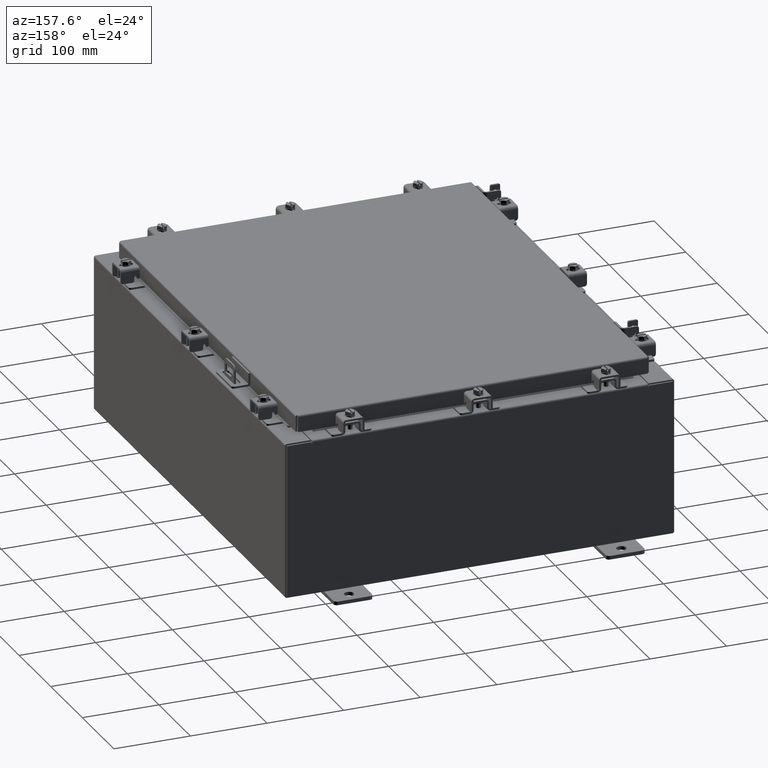
[diagram: clean part render]
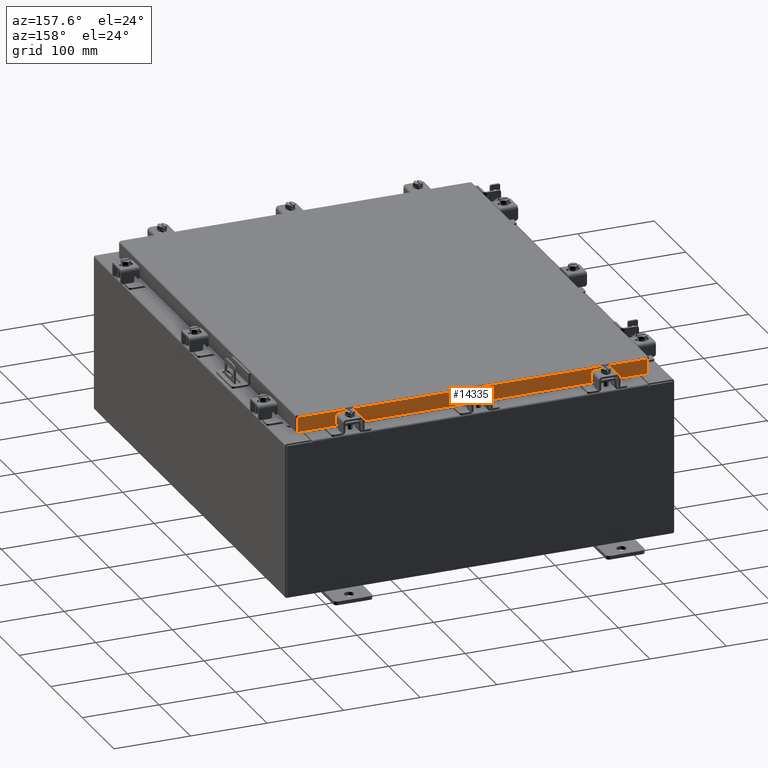
[diagram: same view with one face highlighted and labeled with its STEP entity id]
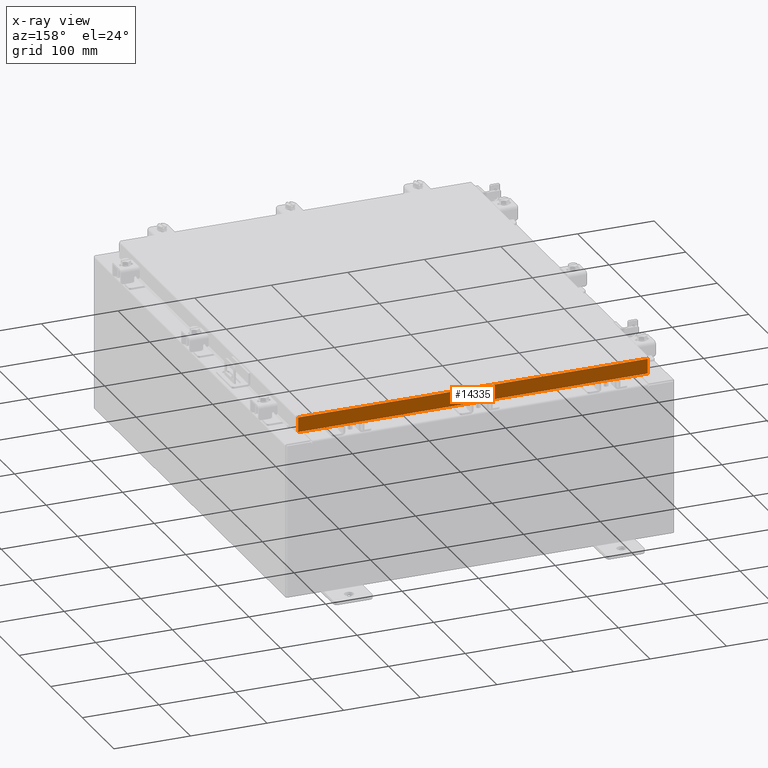
[diagram: x-ray of the same camera — body ghosted, the highlighted face saturated]
A machine part, auxiliary view. The second image highlights one B-rep face of the part: STEP entity #14335.
The next image is the same camera in x-ray: the body ghosted, the highlighted face saturated — about 0% of this face is hidden behind the body in this view.
In plain terms, the highlighted planar face has unit normal (0, -1, -0).
Its self-contained STEP definition (entity closure, byte-faithful):
#445 = VERTEX_POINT ( 'NONE', #1860 ) ;
#1279 = VERTEX_POINT ( 'NONE', #8157 ) ;
#1297 = CARTESIAN_POINT ( 'NONE',  ( -8.989157864376267100, 11.09399999999999900, -0.08770000000000007000 ) ) ;
#1490 = VERTEX_POINT ( 'NONE', #1807 ) ;
#1600 = CARTESIAN_POINT ( 'NONE',  ( -9.077999999999999400, 11.09400000000000100, -0.8500000000000019800 ) ) ;
#1807 = CARTESIAN_POINT ( 'NONE',  ( 8.239157864376267100, 11.09399999999999900, -0.8500000000000046400 ) ) ;
#1860 = CARTESIAN_POINT ( 'NONE',  ( 8.989157864376267100, 11.09399999999999900, -0.08770000000000007000 ) ) ;
#3460 = VECTOR ( 'NONE', #16653, 39.37007874015748100 ) ;
#3658 = PLANE ( 'NONE',  #4101 ) ;
#3810 = LINE ( 'NONE', #6040, #13111 ) ;
#4083 = DIRECTION ( 'NONE',  ( 1.000000000000000000, -0.0000000000000000000, -0.0000000000000000000 ) ) ;
#4101 = AXIS2_PLACEMENT_3D ( 'NONE', #10577, #7162, #19391 ) ;
#4122 = VERTEX_POINT ( 'NONE', #1297 ) ;
#4225 = ORIENTED_EDGE ( 'NONE', *, *, #14931, .F. ) ;
#4285 = EDGE_CURVE ( 'NONE', #445, #1279, #12799, .T. ) ;
#4912 = VECTOR ( 'NONE', #4083, 39.37007874015748100 ) ;
#5506 = VERTEX_POINT ( 'NONE', #10034 ) ;
#5678 = DIRECTION ( 'NONE',  ( 0.0000000000000000000, 2.818880942772351900E-015, -1.000000000000000000 ) ) ;
#6040 = CARTESIAN_POINT ( 'NONE',  ( -9.077999999999999400, 11.09399999999999900, -0.08770000000000007000 ) ) ;
#7125 = FACE_OUTER_BOUND ( 'NONE', #16210, .T. ) ;
#7162 = DIRECTION ( 'NONE',  ( 3.605222026166233900E-031, -1.000000000000000000, -2.818880942772351900E-015 ) ) ;
#8157 = CARTESIAN_POINT ( 'NONE',  ( 8.989157864376267100, 11.09400000000000100, -0.8499999999999996400 ) ) ;
#8701 = VECTOR ( 'NONE', #5678, 39.37007874015748100 ) ;
#8818 = VERTEX_POINT ( 'NONE', #11752 ) ;
#8895 = EDGE_CURVE ( 'NONE', #4122, #5506, #21516, .T. ) ;
#9092 = ORIENTED_EDGE ( 'NONE', *, *, #15039, .F. ) ;
#9561 = LINE ( 'NONE', #19299, #4912 ) ;
#9692 = ORIENTED_EDGE ( 'NONE', *, *, #10042, .F. ) ;
#10034 = CARTESIAN_POINT ( 'NONE',  ( -8.989157864376267100, 11.09400000000000100, -0.8500000000000019800 ) ) ;
#10042 = EDGE_CURVE ( 'NONE', #1490, #1279, #17412, .T. ) ;
#10577 = CARTESIAN_POINT ( 'NONE',  ( -3.999633315828819900E-030, 11.09399999999999900, 3.153347883512804900E-014 ) ) ;
#11176 = VECTOR ( 'NONE', #13818, 39.37007874015748100 ) ;
#11305 = DIRECTION ( 'NONE',  ( -1.000000000000000000, -3.605222026166234800E-031, -9.826997386333231700E-046 ) ) ;
#11454 = ORIENTED_EDGE ( 'NONE', *, *, #15666, .F. ) ;
#11752 = CARTESIAN_POINT ( 'NONE',  ( -8.239157864376267100, 11.09399999999999900, -0.8500000000000046400 ) ) ;
#12799 = LINE ( 'NONE', #17391, #8701 ) ;
#13111 = VECTOR ( 'NONE', #11305, 39.37007874015748100 ) ;
#13782 = CARTESIAN_POINT ( 'NONE',  ( -8.989157864376267100, 11.09399999999999900, -0.07469999999999978000 ) ) ;
#13818 = DIRECTION ( 'NONE',  ( 1.000000000000000000, -4.379057701015054300E-047, 1.278955053213606700E-016 ) ) ;
#14335 = ADVANCED_FACE ( 'NONE', ( #7125 ), #3658, .F. ) ;
#14896 = CARTESIAN_POINT ( 'NONE',  ( -9.077999999999999400, 11.09400000000000100, -0.8500000000000019800 ) ) ;
#14931 = EDGE_CURVE ( 'NONE', #5506, #8818, #20500, .T. ) ;
#15039 = EDGE_CURVE ( 'NONE', #8818, #1490, #9561, .T. ) ;
#15525 = DIRECTION ( 'NONE',  ( -0.0000000000000000000, 2.818880942772351900E-015, -1.000000000000000000 ) ) ;
#15661 = ORIENTED_EDGE ( 'NONE', *, *, #8895, .F. ) ;
#15666 = EDGE_CURVE ( 'NONE', #445, #4122, #3810, .T. ) ;
#16210 = EDGE_LOOP ( 'NONE', ( #11454, #21715, #9692, #9092, #4225, #15661 ) ) ;
#16653 = DIRECTION ( 'NONE',  ( 1.000000000000000000, -4.379057701015054300E-047, 1.278955053213606700E-016 ) ) ;
#17391 = CARTESIAN_POINT ( 'NONE',  ( 8.989157864376267100, 11.09399999999999900, 3.153347883512804900E-014 ) ) ;
#17412 = LINE ( 'NONE', #14896, #3460 ) ;
#19299 = CARTESIAN_POINT ( 'NONE',  ( -8.239157864376267100, 11.09399999999999900, -0.8500000000000046400 ) ) ;
#19391 = DIRECTION ( 'NONE',  ( 0.0000000000000000000, 2.818880942772351900E-015, -1.000000000000000000 ) ) ;
#20500 = LINE ( 'NONE', #1600, #11176 ) ;
#20970 = VECTOR ( 'NONE', #15525, 39.37007874015748100 ) ;
#21516 = LINE ( 'NONE', #13782, #20970 ) ;
#21715 = ORIENTED_EDGE ( 'NONE', *, *, #4285, .T. ) ;